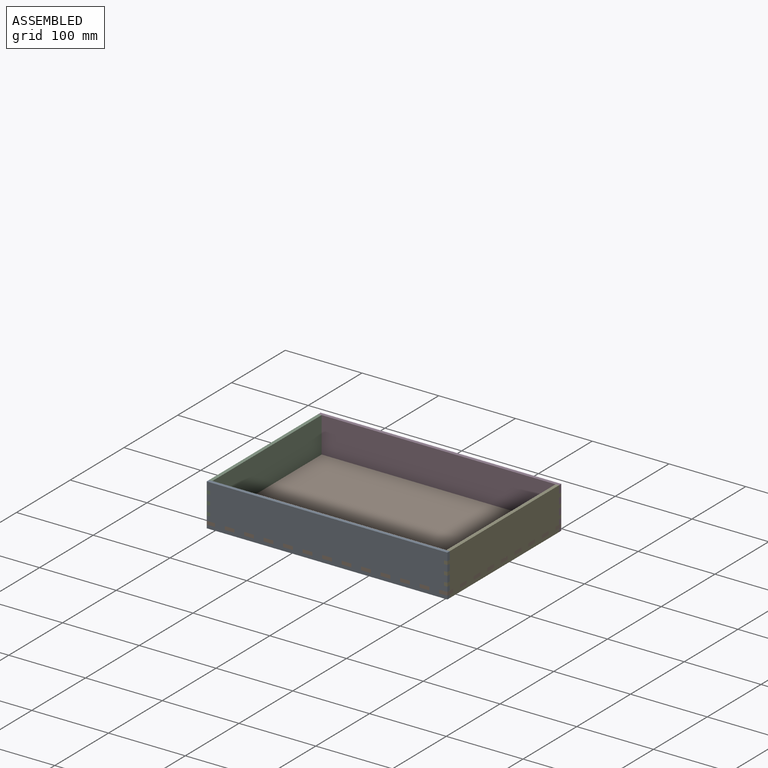
[diagram: assembled view]
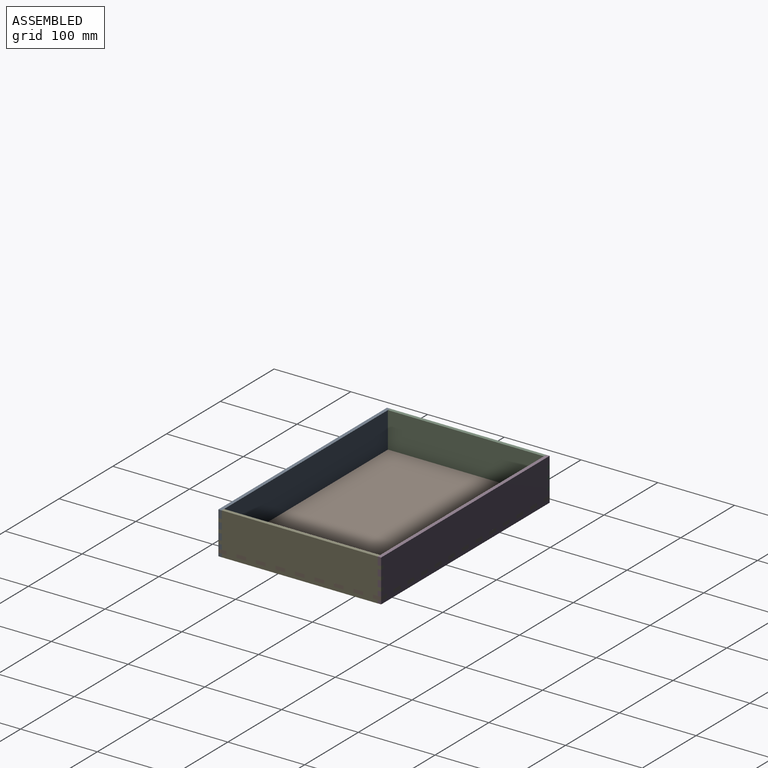
[diagram: assembled view, second angle]
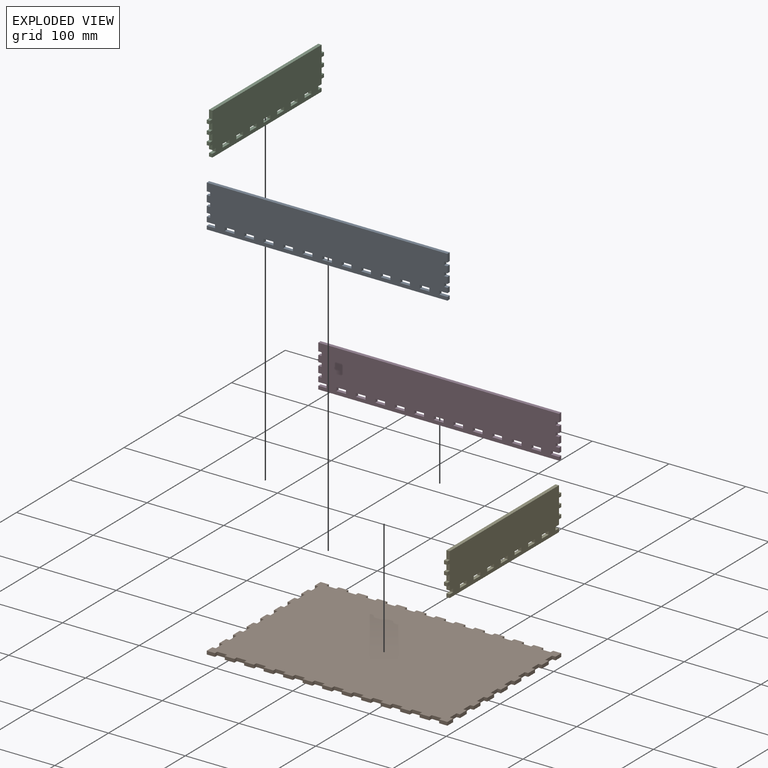
[diagram: exploded view]
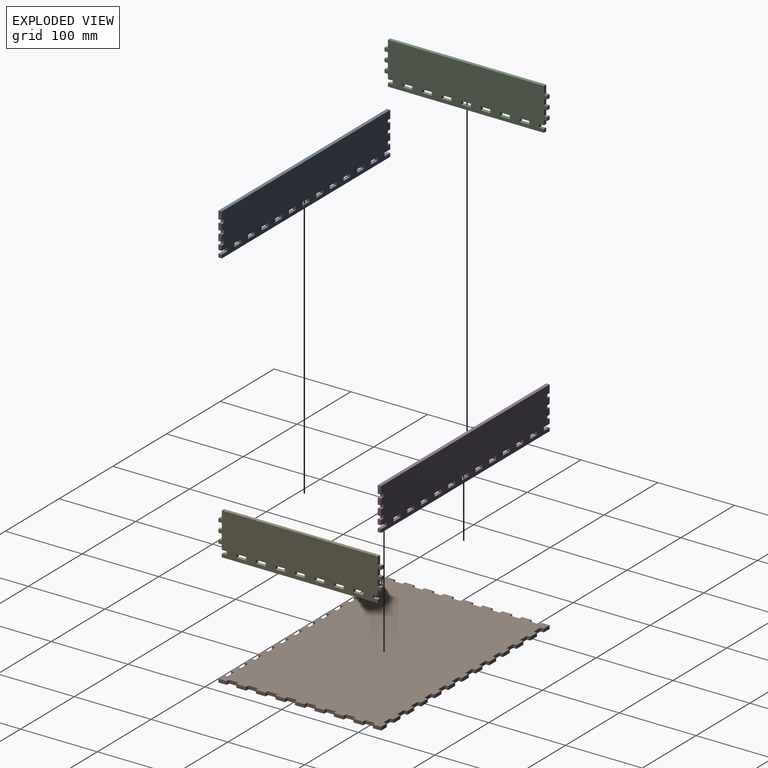
[diagram: exploded view, second angle]
ASSEMBLY  parts=5 mates=4
PART A: 82 faces, bbox 313.6x4.4x55.2 mm
  f0: plane 4.39x4.39mm, normal (1,0,0), area 19.3mm2, adj f1,f79,f80,f81
  f1: plane 12.7x4.39mm, normal (0,0,-1), area 55.8mm2, adj f0,f2,f80,f81
  f2: plane 4.39x4.39mm, normal (-1,0,0), area 19.3mm2, adj f1,f79,f80,f81
  f3: plane 4.39x4.39mm, normal (1,0,0), area 19.3mm2, adj f4,f68,f80,f81
  f4: plane 12.7x4.39mm, normal (0,0,-1), area 55.8mm2, adj f3,f5,f80,f81
  f5: plane 4.39x4.39mm, normal (-1,0,0), area 19.3mm2, adj f4,f68,f80,f81
  f6: plane 4.39x4.39mm, normal (1,0,0), area 19.3mm2, adj f7,f69,f80,f81
  f7: plane 12.7x4.39mm, normal (0,0,-1), area 55.8mm2, adj f6,f8,f80,f81
  f8: plane 4.39x4.39mm, normal (-1,0,0), area 19.3mm2, adj f7,f69,f80,f81
  f9: plane 4.39x4.39mm, normal (1,0,0), area 19.3mm2, adj f10,f70,f80,f81
  f10: plane 12.7x4.39mm, normal (0,0,-1), area 55.8mm2, adj f9,f11,f80,f81
  f11: plane 4.39x4.39mm, normal (-1,0,0), area 19.3mm2, adj f10,f70,f80,f81
  f12: plane 4.39x4.39mm, normal (1,0,0), area 19.3mm2, adj f13,f71,f80,f81
  f13: plane 12.7x4.39mm, normal (0,0,-1), area 55.8mm2, adj f12,f14,f80,f81
  f14: plane 4.39x4.39mm, normal (-1,0,0), area 19.3mm2, adj f13,f71,f80,f81
  f15: plane 4.39x4.39mm, normal (1,0,0), area 19.3mm2, adj f16,f72,f80,f81
  f16: plane 12.7x4.39mm, normal (0,0,-1), area 55.8mm2, adj f15,f17,f80,f81
  f17: plane 4.39x4.39mm, normal (-1,0,0), area 19.3mm2, adj f16,f72,f80,f81
  f18: plane 4.39x4.39mm, normal (1,0,0), area 19.3mm2, adj f19,f73,f80,f81
  f19: plane 12.7x4.39mm, normal (0,0,-1), area 55.8mm2, adj f18,f20,f80,f81
  f20: plane 4.39x4.39mm, normal (-1,0,0), area 19.3mm2, adj f19,f73,f80,f81
  f21: plane 4.39x4.39mm, normal (1,0,0), area 19.3mm2, adj f22,f74,f80,f81
  f22: plane 12.7x4.39mm, normal (0,0,-1), area 55.8mm2, adj f21,f23,f80,f81
  f23: plane 4.39x4.39mm, normal (-1,0,0), area 19.3mm2, adj f22,f74,f80,f81
  f24: plane 4.39x4.39mm, normal (1,0,0), area 19.3mm2, adj f25,f75,f80,f81
  f25: plane 12.7x4.39mm, normal (0,0,-1), area 55.8mm2, adj f24,f26,f80,f81
  f26: plane 4.39x4.39mm, normal (-1,0,0), area 19.3mm2, adj f25,f75,f80,f81
  f27: plane 4.39x4.39mm, normal (1,0,0), area 19.3mm2, adj f28,f76,f80,f81
  f28: plane 12.7x4.39mm, normal (0,0,-1), area 55.8mm2, adj f27,f29,f80,f81
  f29: plane 4.39x4.39mm, normal (-1,0,0), area 19.3mm2, adj f28,f76,f80,f81
  f30: plane 4.39x4.39mm, normal (1,0,0), area 19.3mm2, adj f31,f77,f80,f81
  f31: plane 12.7x4.39mm, normal (0,0,-1), area 55.8mm2, adj f30,f32,f80,f81
  f32: plane 4.39x4.39mm, normal (-1,0,0), area 19.3mm2, adj f31,f77,f80,f81
  f33: plane 10.74x4.39mm, normal (0,0,1), area 47.2mm2, adj f34,f78,f80,f81
  f34: plane 4.39x4.39mm, normal (1,0,0), area 19.3mm2, adj f33,f35,f80,f81
  f35: plane 10.74x4.39mm, normal (0,0,-1), area 47.2mm2, adj f34,f36,f80,f81
  f36: plane 6.35x4.39mm, normal (1,0,0), area 27.9mm2, adj f35,f37,f80,f81
  f37: plane 4.39x4.39mm, normal (0,0,1), area 19.3mm2, adj f36,f38,f80,f81
  f38: plane 4.39x4.39mm, normal (1,0,0), area 19.3mm2, adj f37,f39,f80,f81
  f39: plane 4.39x4.39mm, normal (0,0,-1), area 19.3mm2, adj f38,f40,f80,f81
  f40: plane 8.31x4.39mm, normal (1,0,0), area 36.5mm2, adj f39,f41,f80,f81
  f41: plane 4.39x4.39mm, normal (0,0,1), area 19.3mm2, adj f40,f42,f80,f81
  f42: plane 4.39x4.39mm, normal (1,0,0), area 19.3mm2, adj f41,f43,f80,f81
  f43: plane 4.39x4.39mm, normal (0,0,-1), area 19.3mm2, adj f42,f44,f80,f81
  f44: plane 8.31x4.39mm, normal (1,0,0), area 36.5mm2, adj f43,f45,f80,f81
  f45: plane 4.39x4.39mm, normal (0,0,1), area 19.3mm2, adj f44,f46,f80,f81
  f46: plane 4.39x4.39mm, normal (1,0,0), area 19.3mm2, adj f45,f47,f80,f81
  f47: plane 4.39x4.39mm, normal (0,0,-1), area 19.3mm2, adj f46,f48,f80,f81
  f48: plane 10.26x4.39mm, normal (1,0,0), area 45.1mm2, adj f47,f49,f80,f81
  f49: plane 313.59x4.39mm, normal (0,0,1), area 1378mm2, adj f48,f50,f80,f81
  f50: plane 10.26x4.39mm, normal (-1,0,0), area 45.1mm2, adj f49,f51,f80,f81
  f51: plane 4.39x4.39mm, normal (0,0,-1), area 19.3mm2, adj f50,f52,f80,f81
  f52: plane 4.39x4.39mm, normal (-1,0,0), area 19.3mm2, adj f51,f53,f80,f81
  f53: plane 4.39x4.39mm, normal (0,0,1), area 19.3mm2, adj f52,f54,f80,f81
  f54: plane 8.31x4.39mm, normal (-1,0,0), area 36.5mm2, adj f53,f55,f80,f81
  f55: plane 4.39x4.39mm, normal (0,0,-1), area 19.3mm2, adj f54,f56,f80,f81
  f56: plane 4.39x4.39mm, normal (-1,0,0), area 19.3mm2, adj f55,f57,f80,f81
  f57: plane 4.39x4.39mm, normal (0,0,1), area 19.3mm2, adj f56,f58,f80,f81
  f58: plane 8.31x4.39mm, normal (-1,0,0), area 36.5mm2, adj f57,f59,f80,f81
  f59: plane 4.39x4.39mm, normal (0,0,-1), area 19.3mm2, adj f58,f60,f80,f81
  f60: plane 4.39x4.39mm, normal (-1,0,0), area 19.3mm2, adj f59,f61,f80,f81
  f61: plane 4.39x4.39mm, normal (0,0,1), area 19.3mm2, adj f60,f62,f80,f81
  f62: plane 6.35x4.39mm, normal (-1,0,0), area 27.9mm2, adj f61,f63,f80,f81
  f63: plane 10.74x4.39mm, normal (0,0,-1), area 47.2mm2, adj f62,f64,f80,f81
  f64: plane 4.39x4.39mm, normal (-1,0,0), area 19.3mm2, adj f63,f65,f80,f81
  f65: plane 10.74x4.39mm, normal (0,0,1), area 47.2mm2, adj f64,f66,f80,f81
  f66: plane 4.39x4.39mm, normal (-1,0,0), area 19.3mm2, adj f65,f67,f80,f81
  f67: plane 313.59x4.39mm, normal (0,0,-1), area 1378mm2, adj f66,f78,f80,f81
  f68: plane 12.7x4.39mm, normal (0,0,1), area 55.8mm2, adj f3,f5,f80,f81
  f69: plane 12.7x4.39mm, normal (0,0,1), area 55.8mm2, adj f6,f8,f80,f81
  f70: plane 12.7x4.39mm, normal (0,0,1), area 55.8mm2, adj f9,f11,f80,f81
  f71: plane 12.7x4.39mm, normal (0,0,1), area 55.8mm2, adj f12,f14,f80,f81
  f72: plane 12.7x4.39mm, normal (0,0,1), area 55.8mm2, adj f15,f17,f80,f81
  f73: plane 12.7x4.39mm, normal (0,0,1), area 55.8mm2, adj f18,f20,f80,f81
  f74: plane 12.7x4.39mm, normal (0,0,1), area 55.8mm2, adj f21,f23,f80,f81
  f75: plane 12.7x4.39mm, normal (0,0,1), area 55.8mm2, adj f24,f26,f80,f81
  f76: plane 12.7x4.39mm, normal (0,0,1), area 55.8mm2, adj f27,f29,f80,f81
  f77: plane 12.7x4.39mm, normal (0,0,1), area 55.8mm2, adj f30,f32,f80,f81
  f78: plane 4.39x4.39mm, normal (1,0,0), area 19.3mm2, adj f33,f67,f80,f81
  f79: plane 12.7x4.39mm, normal (0,0,1), area 55.8mm2, adj f0,f2,f80,f81
  f80: plane 313.59x55.19mm, normal (0,-1,0), area 16484.1mm2, adj f0,f1,f2,f3,f4,f5,f6,f7
  f81: plane 313.59x55.19mm, normal (0,1,0), area 16484.1mm2, adj f0,f1,f2,f3,f4,f5,f6,f7
PART B: 166 faces, bbox 313.6x212x4.4 mm
  f0: plane 10.74x4.39mm, normal (-1,0,0), area 47.2mm2, adj f1,f163,f164,f165
  f1: plane 4.39x4.39mm, normal (0,-1,0), area 19.3mm2, adj f0,f2,f164,f165
  f2: plane 12.7x4.39mm, normal (-1,0,0), area 55.8mm2, adj f1,f3,f164,f165
  f3: plane 4.39x4.39mm, normal (0,1,0), area 19.3mm2, adj f2,f4,f164,f165
  f4: plane 12.7x4.39mm, normal (-1,0,0), area 55.8mm2, adj f3,f5,f164,f165
  f5: plane 4.39x4.39mm, normal (0,-1,0), area 19.3mm2, adj f4,f6,f164,f165
  f6: plane 12.7x4.39mm, normal (-1,0,0), area 55.8mm2, adj f5,f7,f164,f165
  f7: plane 4.39x4.39mm, normal (0,1,0), area 19.3mm2, adj f6,f8,f164,f165
  f8: plane 12.7x4.39mm, normal (-1,0,0), area 55.8mm2, adj f7,f9,f164,f165
  f9: plane 4.39x4.39mm, normal (0,-1,0), area 19.3mm2, adj f8,f10,f164,f165
  f10: plane 12.7x4.39mm, normal (-1,0,0), area 55.8mm2, adj f9,f11,f164,f165
  f11: plane 4.39x4.39mm, normal (0,1,0), area 19.3mm2, adj f10,f12,f164,f165
  f12: plane 12.7x4.39mm, normal (-1,0,0), area 55.8mm2, adj f11,f13,f164,f165
  f13: plane 4.39x4.39mm, normal (0,-1,0), area 19.3mm2, adj f12,f14,f164,f165
  f14: plane 12.7x4.39mm, normal (-1,0,0), area 55.8mm2, adj f13,f15,f164,f165
  f15: plane 4.39x4.39mm, normal (0,1,0), area 19.3mm2, adj f14,f16,f164,f165
  f16: plane 12.7x4.39mm, normal (-1,0,0), area 55.8mm2, adj f15,f17,f164,f165
  f17: plane 4.39x4.39mm, normal (0,-1,0), area 19.3mm2, adj f16,f18,f164,f165
  f18: plane 12.7x4.39mm, normal (-1,0,0), area 55.8mm2, adj f17,f19,f164,f165
  f19: plane 4.39x4.39mm, normal (0,1,0), area 19.3mm2, adj f18,f20,f164,f165
  f20: plane 12.7x4.39mm, normal (-1,0,0), area 55.8mm2, adj f19,f21,f164,f165
  f21: plane 4.39x4.39mm, normal (0,-1,0), area 19.3mm2, adj f20,f22,f164,f165
  f22: plane 12.7x4.39mm, normal (-1,0,0), area 55.8mm2, adj f21,f23,f164,f165
  f23: plane 4.39x4.39mm, normal (0,1,0), area 19.3mm2, adj f22,f24,f164,f165
  f24: plane 12.7x4.39mm, normal (-1,0,0), area 55.8mm2, adj f23,f25,f164,f165
  f25: plane 4.39x4.39mm, normal (0,-1,0), area 19.3mm2, adj f24,f26,f164,f165
  f26: plane 12.7x4.39mm, normal (-1,0,0), area 55.8mm2, adj f25,f27,f164,f165
  f27: plane 4.39x4.39mm, normal (0,1,0), area 19.3mm2, adj f26,f28,f164,f165
  f28: plane 12.7x4.39mm, normal (-1,0,0), area 55.8mm2, adj f27,f29,f164,f165
  f29: plane 4.39x4.39mm, normal (0,-1,0), area 19.3mm2, adj f28,f30,f164,f165
  f30: plane 12.7x4.39mm, normal (-1,0,0), area 55.8mm2, adj f29,f31,f164,f165
  f31: plane 4.39x4.39mm, normal (0,1,0), area 19.3mm2, adj f30,f32,f164,f165
  f32: plane 10.74x4.39mm, normal (-1,0,0), area 47.2mm2, adj f31,f33,f164,f165
  f33: plane 10.74x4.39mm, normal (0,-1,0), area 47.2mm2, adj f32,f34,f164,f165
  f34: plane 4.39x4.39mm, normal (1,0,0), area 19.3mm2, adj f33,f35,f164,f165
  f35: plane 12.7x4.39mm, normal (0,-1,0), area 55.8mm2, adj f34,f36,f164,f165
  f36: plane 4.39x4.39mm, normal (-1,0,0), area 19.3mm2, adj f35,f37,f164,f165
  f37: plane 12.7x4.39mm, normal (0,-1,0), area 55.8mm2, adj f36,f38,f164,f165
  f38: plane 4.39x4.39mm, normal (1,0,0), area 19.3mm2, adj f37,f39,f164,f165
  f39: plane 12.7x4.39mm, normal (0,-1,0), area 55.8mm2, adj f38,f40,f164,f165
  f40: plane 4.39x4.39mm, normal (-1,0,0), area 19.3mm2, adj f39,f41,f164,f165
  f41: plane 12.7x4.39mm, normal (0,-1,0), area 55.8mm2, adj f40,f42,f164,f165
  f42: plane 4.39x4.39mm, normal (1,0,0), area 19.3mm2, adj f41,f43,f164,f165
  f43: plane 12.7x4.39mm, normal (0,-1,0), area 55.8mm2, adj f42,f44,f164,f165
  f44: plane 4.39x4.39mm, normal (-1,0,0), area 19.3mm2, adj f43,f45,f164,f165
  f45: plane 12.7x4.39mm, normal (0,-1,0), area 55.8mm2, adj f44,f46,f164,f165
  f46: plane 4.39x4.39mm, normal (1,0,0), area 19.3mm2, adj f45,f47,f164,f165
  f47: plane 12.7x4.39mm, normal (0,-1,0), area 55.8mm2, adj f46,f48,f164,f165
  f48: plane 4.39x4.39mm, normal (-1,0,0), area 19.3mm2, adj f47,f49,f164,f165
  f49: plane 12.7x4.39mm, normal (0,-1,0), area 55.8mm2, adj f48,f50,f164,f165
  f50: plane 4.39x4.39mm, normal (1,0,0), area 19.3mm2, adj f49,f51,f164,f165
  f51: plane 12.7x4.39mm, normal (0,-1,0), area 55.8mm2, adj f50,f52,f164,f165
  f52: plane 4.39x4.39mm, normal (-1,0,0), area 19.3mm2, adj f51,f53,f164,f165
  f53: plane 12.7x4.39mm, normal (0,-1,0), area 55.8mm2, adj f52,f54,f164,f165
  f54: plane 4.39x4.39mm, normal (1,0,0), area 19.3mm2, adj f53,f55,f164,f165
  f55: plane 12.7x4.39mm, normal (0,-1,0), area 55.8mm2, adj f54,f56,f164,f165
  f56: plane 4.39x4.39mm, normal (-1,0,0), area 19.3mm2, adj f55,f57,f164,f165
  f57: plane 12.7x4.39mm, normal (0,-1,0), area 55.8mm2, adj f56,f58,f164,f165
  f58: plane 4.39x4.39mm, normal (1,0,0), area 19.3mm2, adj f57,f59,f164,f165
  f59: plane 12.7x4.39mm, normal (0,-1,0), area 55.8mm2, adj f58,f60,f164,f165
  f60: plane 4.39x4.39mm, normal (-1,0,0), area 19.3mm2, adj f59,f61,f164,f165
  f61: plane 12.7x4.39mm, normal (0,-1,0), area 55.8mm2, adj f60,f62,f164,f165
  f62: plane 4.39x4.39mm, normal (1,0,0), area 19.3mm2, adj f61,f63,f164,f165
  f63: plane 12.7x4.39mm, normal (0,-1,0), area 55.8mm2, adj f62,f64,f164,f165
  f64: plane 4.39x4.39mm, normal (-1,0,0), area 19.3mm2, adj f63,f65,f164,f165
  f65: plane 12.7x4.39mm, normal (0,-1,0), area 55.8mm2, adj f64,f66,f164,f165
  f66: plane 4.39x4.39mm, normal (1,0,0), area 19.3mm2, adj f65,f67,f164,f165
  f67: plane 12.7x4.39mm, normal (0,-1,0), area 55.8mm2, adj f66,f68,f164,f165
  f68: plane 4.39x4.39mm, normal (-1,0,0), area 19.3mm2, adj f67,f69,f164,f165
  f69: plane 12.7x4.39mm, normal (0,-1,0), area 55.8mm2, adj f68,f70,f164,f165
  f70: plane 4.39x4.39mm, normal (1,0,0), area 19.3mm2, adj f69,f71,f164,f165
  f71: plane 12.7x4.39mm, normal (0,-1,0), area 55.8mm2, adj f70,f72,f164,f165
  f72: plane 4.39x4.39mm, normal (-1,0,0), area 19.3mm2, adj f71,f73,f164,f165
  f73: plane 12.7x4.39mm, normal (0,-1,0), area 55.8mm2, adj f72,f74,f164,f165
  f74: plane 4.39x4.39mm, normal (1,0,0), area 19.3mm2, adj f73,f75,f164,f165
  f75: plane 12.7x4.39mm, normal (0,-1,0), area 55.8mm2, adj f74,f76,f164,f165
  f76: plane 4.39x4.39mm, normal (-1,0,0), area 19.3mm2, adj f75,f77,f164,f165
  f77: plane 12.7x4.39mm, normal (0,-1,0), area 55.8mm2, adj f76,f78,f164,f165
  f78: plane 4.39x4.39mm, normal (1,0,0), area 19.3mm2, adj f77,f79,f164,f165
  f79: plane 12.7x4.39mm, normal (0,-1,0), area 55.8mm2, adj f78,f80,f164,f165
  f80: plane 4.39x4.39mm, normal (-1,0,0), area 19.3mm2, adj f79,f81,f164,f165
  f81: plane 10.74x4.39mm, normal (0,-1,0), area 47.2mm2, adj f80,f82,f164,f165
  f82: plane 10.74x4.39mm, normal (1,0,0), area 47.2mm2, adj f81,f83,f164,f165
  f83: plane 4.39x4.39mm, normal (0,1,0), area 19.3mm2, adj f82,f84,f164,f165
  f84: plane 12.7x4.39mm, normal (1,0,0), area 55.8mm2, adj f83,f85,f164,f165
  f85: plane 4.39x4.39mm, normal (0,-1,0), area 19.3mm2, adj f84,f86,f164,f165
  f86: plane 12.7x4.39mm, normal (1,0,0), area 55.8mm2, adj f85,f87,f164,f165
  f87: plane 4.39x4.39mm, normal (0,1,0), area 19.3mm2, adj f86,f88,f164,f165
  f88: plane 12.7x4.39mm, normal (1,0,0), area 55.8mm2, adj f87,f89,f164,f165
  f89: plane 4.39x4.39mm, normal (0,-1,0), area 19.3mm2, adj f88,f90,f164,f165
  f90: plane 12.7x4.39mm, normal (1,0,0), area 55.8mm2, adj f89,f91,f164,f165
  f91: plane 4.39x4.39mm, normal (0,1,0), area 19.3mm2, adj f90,f92,f164,f165
  f92: plane 12.7x4.39mm, normal (1,0,0), area 55.8mm2, adj f91,f93,f164,f165
  f93: plane 4.39x4.39mm, normal (0,-1,0), area 19.3mm2, adj f92,f94,f164,f165
  f94: plane 12.7x4.39mm, normal (1,0,0), area 55.8mm2, adj f93,f95,f164,f165
  f95: plane 4.39x4.39mm, normal (0,1,0), area 19.3mm2, adj f94,f96,f164,f165
  f96: plane 12.7x4.39mm, normal (1,0,0), area 55.8mm2, adj f95,f97,f164,f165
  f97: plane 4.39x4.39mm, normal (0,-1,0), area 19.3mm2, adj f96,f98,f164,f165
  f98: plane 12.7x4.39mm, normal (1,0,0), area 55.8mm2, adj f97,f99,f164,f165
  f99: plane 4.39x4.39mm, normal (0,1,0), area 19.3mm2, adj f98,f100,f164,f165
  f100: plane 12.7x4.39mm, normal (1,0,0), area 55.8mm2, adj f99,f101,f164,f165
  f101: plane 4.39x4.39mm, normal (0,-1,0), area 19.3mm2, adj f100,f102,f164,f165
  f102: plane 12.7x4.39mm, normal (1,0,0), area 55.8mm2, adj f101,f103,f164,f165
  f103: plane 4.39x4.39mm, normal (0,1,0), area 19.3mm2, adj f102,f104,f164,f165
  f104: plane 12.7x4.39mm, normal (1,0,0), area 55.8mm2, adj f103,f105,f164,f165
  f105: plane 4.39x4.39mm, normal (0,-1,0), area 19.3mm2, adj f104,f106,f164,f165
  f106: plane 12.7x4.39mm, normal (1,0,0), area 55.8mm2, adj f105,f107,f164,f165
  f107: plane 4.39x4.39mm, normal (0,1,0), area 19.3mm2, adj f106,f108,f164,f165
  f108: plane 12.7x4.39mm, normal (1,0,0), area 55.8mm2, adj f107,f109,f164,f165
  f109: plane 4.39x4.39mm, normal (0,-1,0), area 19.3mm2, adj f108,f110,f164,f165
  f110: plane 12.7x4.39mm, normal (1,0,0), area 55.8mm2, adj f109,f111,f164,f165
  f111: plane 4.39x4.39mm, normal (0,1,0), area 19.3mm2, adj f110,f112,f164,f165
  f112: plane 12.7x4.39mm, normal (1,0,0), area 55.8mm2, adj f111,f113,f164,f165
  f113: plane 4.39x4.39mm, normal (0,-1,0), area 19.3mm2, adj f112,f114,f164,f165
  f114: plane 10.74x4.39mm, normal (1,0,0), area 47.2mm2, adj f113,f115,f164,f165
  f115: plane 10.74x4.39mm, normal (0,1,0), area 47.2mm2, adj f114,f116,f164,f165
  f116: plane 4.39x4.39mm, normal (-1,0,0), area 19.3mm2, adj f115,f117,f164,f165
  f117: plane 12.7x4.39mm, normal (0,1,0), area 55.8mm2, adj f116,f118,f164,f165
  f118: plane 4.39x4.39mm, normal (1,0,0), area 19.3mm2, adj f117,f119,f164,f165
  f119: plane 12.7x4.39mm, normal (0,1,0), area 55.8mm2, adj f118,f120,f164,f165
  f120: plane 4.39x4.39mm, normal (-1,0,0), area 19.3mm2, adj f119,f121,f164,f165
  f121: plane 12.7x4.39mm, normal (0,1,0), area 55.8mm2, adj f120,f122,f164,f165
  f122: plane 4.39x4.39mm, normal (1,0,0), area 19.3mm2, adj f121,f123,f164,f165
  f123: plane 12.7x4.39mm, normal (0,1,0), area 55.8mm2, adj f122,f124,f164,f165
  f124: plane 4.39x4.39mm, normal (-1,0,0), area 19.3mm2, adj f123,f125,f164,f165
  f125: plane 12.7x4.39mm, normal (0,1,0), area 55.8mm2, adj f124,f126,f164,f165
  f126: plane 4.39x4.39mm, normal (1,0,0), area 19.3mm2, adj f125,f127,f164,f165
  f127: plane 12.7x4.39mm, normal (0,1,0), area 55.8mm2, adj f126,f128,f164,f165
  f128: plane 4.39x4.39mm, normal (-1,0,0), area 19.3mm2, adj f127,f129,f164,f165
  f129: plane 12.7x4.39mm, normal (0,1,0), area 55.8mm2, adj f128,f130,f164,f165
  f130: plane 4.39x4.39mm, normal (1,0,0), area 19.3mm2, adj f129,f131,f164,f165
  f131: plane 12.7x4.39mm, normal (0,1,0), area 55.8mm2, adj f130,f132,f164,f165
  f132: plane 4.39x4.39mm, normal (-1,0,0), area 19.3mm2, adj f131,f133,f164,f165
  f133: plane 12.7x4.39mm, normal (0,1,0), area 55.8mm2, adj f132,f134,f164,f165
  f134: plane 4.39x4.39mm, normal (1,0,0), area 19.3mm2, adj f133,f135,f164,f165
  f135: plane 12.7x4.39mm, normal (0,1,0), area 55.8mm2, adj f134,f136,f164,f165
  f136: plane 4.39x4.39mm, normal (-1,0,0), area 19.3mm2, adj f135,f137,f164,f165
  f137: plane 12.7x4.39mm, normal (0,1,0), area 55.8mm2, adj f136,f138,f164,f165
  f138: plane 4.39x4.39mm, normal (1,0,0), area 19.3mm2, adj f137,f139,f164,f165
  f139: plane 12.7x4.39mm, normal (0,1,0), area 55.8mm2, adj f138,f140,f164,f165
  f140: plane 4.39x4.39mm, normal (-1,0,0), area 19.3mm2, adj f139,f141,f164,f165
  f141: plane 12.7x4.39mm, normal (0,1,0), area 55.8mm2, adj f140,f142,f164,f165
  f142: plane 4.39x4.39mm, normal (1,0,0), area 19.3mm2, adj f141,f143,f164,f165
  f143: plane 12.7x4.39mm, normal (0,1,0), area 55.8mm2, adj f142,f144,f164,f165
  f144: plane 4.39x4.39mm, normal (-1,0,0), area 19.3mm2, adj f143,f145,f164,f165
  f145: plane 12.7x4.39mm, normal (0,1,0), area 55.8mm2, adj f144,f146,f164,f165
  f146: plane 4.39x4.39mm, normal (1,0,0), area 19.3mm2, adj f145,f147,f164,f165
  f147: plane 12.7x4.39mm, normal (0,1,0), area 55.8mm2, adj f146,f148,f164,f165
  f148: plane 4.39x4.39mm, normal (-1,0,0), area 19.3mm2, adj f147,f149,f164,f165
  f149: plane 12.7x4.39mm, normal (0,1,0), area 55.8mm2, adj f148,f150,f164,f165
  f150: plane 4.39x4.39mm, normal (1,0,0), area 19.3mm2, adj f149,f151,f164,f165
  f151: plane 12.7x4.39mm, normal (0,1,0), area 55.8mm2, adj f150,f152,f164,f165
  f152: plane 4.39x4.39mm, normal (-1,0,0), area 19.3mm2, adj f151,f153,f164,f165
  f153: plane 12.7x4.39mm, normal (0,1,0), area 55.8mm2, adj f152,f154,f164,f165
  f154: plane 4.39x4.39mm, normal (1,0,0), area 19.3mm2, adj f153,f155,f164,f165
  f155: plane 12.7x4.39mm, normal (0,1,0), area 55.8mm2, adj f154,f156,f164,f165
  f156: plane 4.39x4.39mm, normal (-1,0,0), area 19.3mm2, adj f155,f157,f164,f165
  f157: plane 12.7x4.39mm, normal (0,1,0), area 55.8mm2, adj f156,f158,f164,f165
  f158: plane 4.39x4.39mm, normal (1,0,0), area 19.3mm2, adj f157,f159,f164,f165
  f159: plane 12.7x4.39mm, normal (0,1,0), area 55.8mm2, adj f158,f160,f164,f165
  f160: plane 4.39x4.39mm, normal (-1,0,0), area 19.3mm2, adj f159,f161,f164,f165
  f161: plane 12.7x4.39mm, normal (0,1,0), area 55.8mm2, adj f160,f162,f164,f165
  f162: plane 4.39x4.39mm, normal (1,0,0), area 19.3mm2, adj f161,f163,f164,f165
  f163: plane 10.74x4.39mm, normal (0,1,0), area 47.2mm2, adj f0,f162,f164,f165
  f164: plane 313.59x211.99mm, normal (0,0,1), area 64244.8mm2, adj f0,f1,f2,f3,f4,f5,f6,f7
  f165: plane 313.59x211.99mm, normal (0,0,-1), area 64244.8mm2, adj f0,f1,f2,f3,f4,f5,f6,f7
PART C: 66 faces, bbox 4.4x212x55.2 mm
  f0: plane 8.31x4.39mm, normal (0,-1,0), area 36.5mm2, adj f1,f63,f64,f65
  f1: plane 4.39x4.39mm, normal (0,0,1), area 19.3mm2, adj f0,f2,f64,f65
  f2: plane 4.39x4.39mm, normal (0,-1,0), area 19.3mm2, adj f1,f3,f64,f65
  f3: plane 4.39x4.39mm, normal (0,0,-1), area 19.3mm2, adj f2,f4,f64,f65
  f4: plane 6.35x4.39mm, normal (0,-1,0), area 27.9mm2, adj f3,f5,f64,f65
  f5: plane 6.35x4.39mm, normal (0,0,-1), area 27.9mm2, adj f4,f6,f64,f65
  f6: plane 4.39x4.39mm, normal (0,-1,0), area 19.3mm2, adj f5,f7,f64,f65
  f7: plane 6.35x4.39mm, normal (0,0,1), area 27.9mm2, adj f6,f8,f64,f65
  f8: plane 4.39x4.39mm, normal (0,-1,0), area 19.3mm2, adj f7,f9,f64,f65
  f9: plane 203.2x4.39mm, normal (0,0,-1), area 892.9mm2, adj f8,f10,f64,f65
  f10: plane 4.39x4.39mm, normal (0,1,0), area 19.3mm2, adj f9,f11,f64,f65
  f11: plane 6.35x4.39mm, normal (0,0,1), area 27.9mm2, adj f10,f12,f64,f65
  f12: plane 4.39x4.39mm, normal (0,1,0), area 19.3mm2, adj f11,f13,f64,f65
  f13: plane 6.35x4.39mm, normal (0,0,-1), area 27.9mm2, adj f12,f14,f64,f65
  f14: plane 6.35x4.39mm, normal (0,1,0), area 27.9mm2, adj f13,f15,f64,f65
  f15: plane 4.39x4.39mm, normal (0,0,-1), area 19.3mm2, adj f14,f16,f64,f65
  f16: plane 4.39x4.39mm, normal (0,1,0), area 19.3mm2, adj f15,f17,f64,f65
  f17: plane 4.39x4.39mm, normal (0,0,1), area 19.3mm2, adj f16,f18,f64,f65
  f18: plane 8.31x4.39mm, normal (0,1,0), area 36.5mm2, adj f17,f19,f64,f65
  f19: plane 4.39x4.39mm, normal (0,0,-1), area 19.3mm2, adj f18,f20,f64,f65
  f20: plane 4.39x4.39mm, normal (0,1,0), area 19.3mm2, adj f19,f21,f64,f65
  f21: plane 4.39x4.39mm, normal (0,0,1), area 19.3mm2, adj f20,f22,f64,f65
  f22: plane 8.31x4.39mm, normal (0,1,0), area 36.5mm2, adj f21,f23,f64,f65
  f23: plane 4.39x4.39mm, normal (0,0,-1), area 19.3mm2, adj f22,f24,f64,f65
  f24: plane 4.39x4.39mm, normal (0,1,0), area 19.3mm2, adj f23,f25,f64,f65
  f25: plane 4.39x4.39mm, normal (0,0,1), area 19.3mm2, adj f24,f26,f64,f65
  f26: plane 10.26x4.39mm, normal (0,1,0), area 45.1mm2, adj f25,f27,f64,f65
  f27: plane 203.2x4.39mm, normal (0,0,1), area 892.9mm2, adj f26,f28,f64,f65
  f28: plane 10.26x4.39mm, normal (0,-1,0), area 45.1mm2, adj f27,f29,f64,f65
  f29: plane 4.39x4.39mm, normal (0,0,1), area 19.3mm2, adj f28,f30,f64,f65
  f30: plane 4.39x4.39mm, normal (0,-1,0), area 19.3mm2, adj f29,f31,f64,f65
  f31: plane 4.39x4.39mm, normal (0,0,-1), area 19.3mm2, adj f30,f32,f64,f65
  f32: plane 8.31x4.39mm, normal (0,-1,0), area 36.5mm2, adj f31,f33,f64,f65
  f33: plane 4.39x4.39mm, normal (0,0,1), area 19.3mm2, adj f32,f34,f64,f65
  f34: plane 4.39x4.39mm, normal (0,-1,0), area 19.3mm2, adj f33,f63,f64,f65
  f35: plane 12.7x4.39mm, normal (0,0,-1), area 55.8mm2, adj f36,f56,f64,f65
  f36: plane 4.39x4.39mm, normal (0,-1,0), area 19.3mm2, adj f35,f37,f64,f65
  f37: plane 12.7x4.39mm, normal (0,0,1), area 55.8mm2, adj f36,f56,f64,f65
  f38: plane 4.39x4.39mm, normal (0,1,0), area 19.3mm2, adj f39,f57,f64,f65
  f39: plane 12.7x4.39mm, normal (0,0,-1), area 55.8mm2, adj f38,f40,f64,f65
  f40: plane 4.39x4.39mm, normal (0,-1,0), area 19.3mm2, adj f39,f57,f64,f65
  f41: plane 4.39x4.39mm, normal (0,1,0), area 19.3mm2, adj f42,f58,f64,f65
  f42: plane 12.7x4.39mm, normal (0,0,-1), area 55.8mm2, adj f41,f43,f64,f65
  f43: plane 4.39x4.39mm, normal (0,-1,0), area 19.3mm2, adj f42,f58,f64,f65
  f44: plane 4.39x4.39mm, normal (0,1,0), area 19.3mm2, adj f45,f59,f64,f65
  f45: plane 12.7x4.39mm, normal (0,0,-1), area 55.8mm2, adj f44,f46,f64,f65
  f46: plane 4.39x4.39mm, normal (0,-1,0), area 19.3mm2, adj f45,f59,f64,f65
  f47: plane 4.39x4.39mm, normal (0,1,0), area 19.3mm2, adj f48,f60,f64,f65
  f48: plane 12.7x4.39mm, normal (0,0,-1), area 55.8mm2, adj f47,f49,f64,f65
  f49: plane 4.39x4.39mm, normal (0,-1,0), area 19.3mm2, adj f48,f60,f64,f65
  f50: plane 4.39x4.39mm, normal (0,1,0), area 19.3mm2, adj f51,f61,f64,f65
  f51: plane 12.7x4.39mm, normal (0,0,-1), area 55.8mm2, adj f50,f52,f64,f65
  f52: plane 4.39x4.39mm, normal (0,-1,0), area 19.3mm2, adj f51,f61,f64,f65
  f53: plane 4.39x4.39mm, normal (0,1,0), area 19.3mm2, adj f54,f62,f64,f65
  f54: plane 12.7x4.39mm, normal (0,0,-1), area 55.8mm2, adj f53,f55,f64,f65
  f55: plane 4.39x4.39mm, normal (0,-1,0), area 19.3mm2, adj f54,f62,f64,f65
  f56: plane 4.39x4.39mm, normal (0,1,0), area 19.3mm2, adj f35,f37,f64,f65
  f57: plane 12.7x4.39mm, normal (0,0,1), area 55.8mm2, adj f38,f40,f64,f65
  f58: plane 12.7x4.39mm, normal (0,0,1), area 55.8mm2, adj f41,f43,f64,f65
  f59: plane 12.7x4.39mm, normal (0,0,1), area 55.8mm2, adj f44,f46,f64,f65
  f60: plane 12.7x4.39mm, normal (0,0,1), area 55.8mm2, adj f47,f49,f64,f65
  f61: plane 12.7x4.39mm, normal (0,0,1), area 55.8mm2, adj f50,f52,f64,f65
  f62: plane 12.7x4.39mm, normal (0,0,1), area 55.8mm2, adj f53,f55,f64,f65
  f63: plane 4.39x4.39mm, normal (0,0,-1), area 19.3mm2, adj f0,f34,f64,f65
  f64: plane 211.99x55.19mm, normal (1,0,0), area 10884.9mm2, adj f0,f1,f2,f3,f4,f5,f6,f7
  f65: plane 211.99x55.19mm, normal (-1,0,0), area 10884.9mm2, adj f0,f1,f2,f3,f4,f5,f6,f7
PART D: same geometry as A
PART E: same geometry as C
PLACE A t=(-220.92,116.98,-10.38)mm
PLACE B t=(-64.12,218.58,-5.99)mm
PLACE C t=(-220.92,218.58,17.21)mm
PLACE D t=(-220.92,324.58,-10.38)mm
PLACE E t=(88.28,218.58,17.21)mm
MATE fastened E.f11 <-> B.f165  axis (0,0,1) through (92.67,313.83,-5.99)mm
MATE fastened B.f165 <-> C.f11  axis (0,0,-1) through (-220.92,313.83,-5.99)mm
MATE fastened A.f65 <-> B.f165  axis (0,0,1) through (-220.92,112.59,-5.99)mm
MATE fastened D.f65 <-> B.f165  axis (0,0,1) through (-220.92,324.58,-5.99)mm
